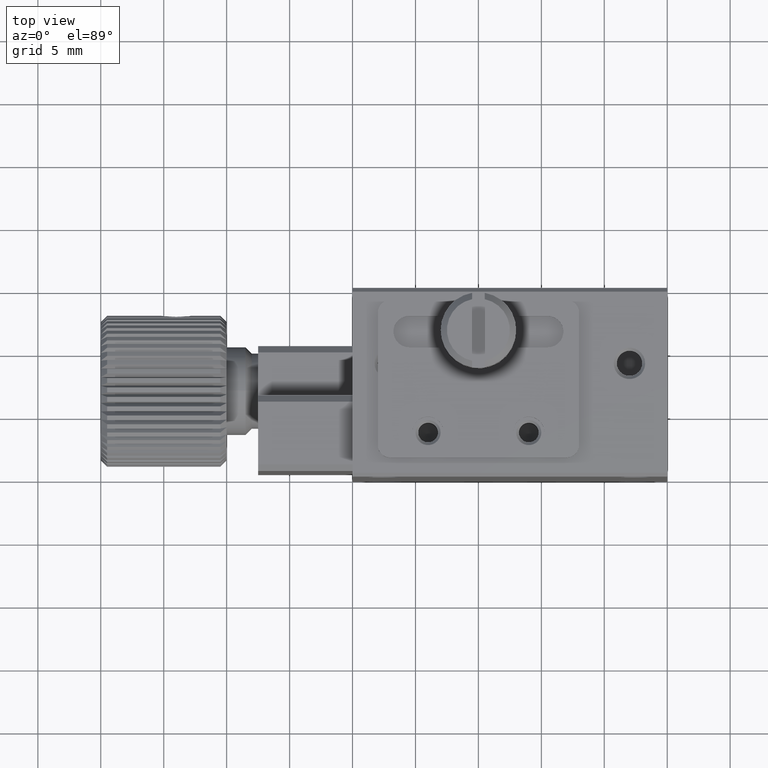
[diagram: clean part render]
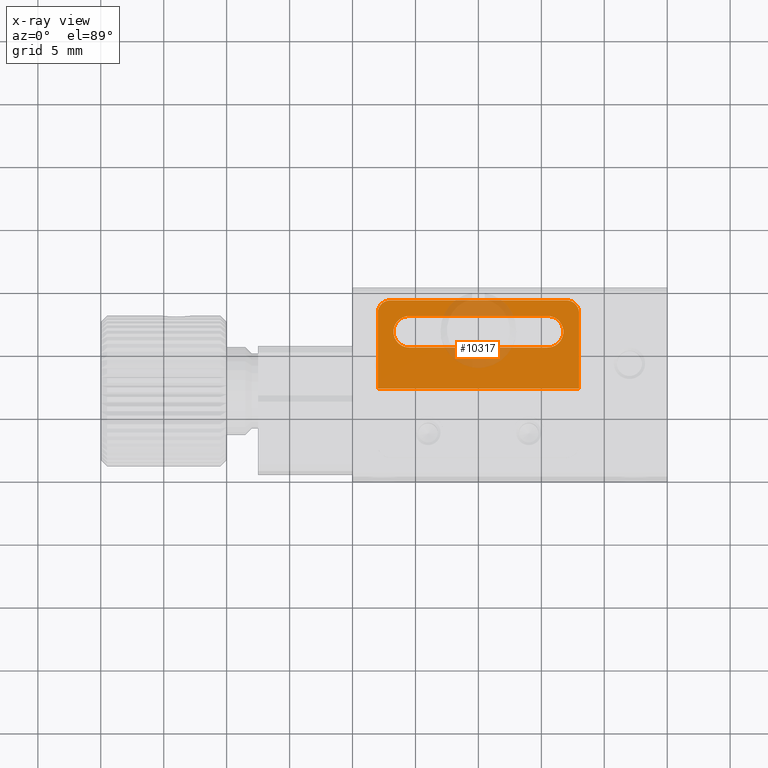
[diagram: x-ray — body ghosted, one internal face saturated and labeled with its STEP entity id]
A machine part, top view, then the same camera in x-ray: the body is ghosted and one INTERNAL B-rep face — a face not visible from any outside direction — is saturated and labeled: STEP entity #10317.
In plain terms, the highlighted planar face has unit normal (0, 0, 1).
Its self-contained STEP definition (entity closure, byte-faithful):
#67 = DIRECTION ( 'NONE',  ( -1.000000000000000000, 0.000000000000000000, 0.000000000000000000 ) ) ;
#416 = ORIENTED_EDGE ( 'NONE', *, *, #8452, .F. ) ;
#519 = EDGE_CURVE ( 'NONE', #2194, #7479, #8660, .T. ) ;
#656 = ORIENTED_EDGE ( 'NONE', *, *, #7029, .F. ) ;
#684 = VERTEX_POINT ( 'NONE', #5292 ) ;
#885 = ORIENTED_EDGE ( 'NONE', *, *, #4628, .F. ) ;
#922 = VERTEX_POINT ( 'NONE', #1804 ) ;
#955 = ORIENTED_EDGE ( 'NONE', *, *, #4452, .F. ) ;
#1006 = VERTEX_POINT ( 'NONE', #8874 ) ;
#1058 = EDGE_CURVE ( 'NONE', #922, #684, #8899, .T. ) ;
#1394 = FACE_OUTER_BOUND ( 'NONE', #8771, .T. ) ;
#1501 = DIRECTION ( 'NONE',  ( 0.000000000000000000, 0.000000000000000000, -1.000000000000000000 ) ) ;
#1804 = CARTESIAN_POINT ( 'NONE',  ( 3.000000000000000000, 14.00000000000000178, 0.000000000000000000 ) ) ;
#2009 = CARTESIAN_POINT ( 'NONE',  ( 18.00000000000001066, 13.00000000000000178, 0.000000000000000000 ) ) ;
#2071 = CARTESIAN_POINT ( 'NONE',  ( 3.000000000000000000, 13.00000000000000178, 0.000000000000000000 ) ) ;
#2194 = VERTEX_POINT ( 'NONE', #10934 ) ;
#2452 = ORIENTED_EDGE ( 'NONE', *, *, #12313, .T. ) ;
#2586 = CARTESIAN_POINT ( 'NONE',  ( 17.00000000000000000, 14.00000000000000000, 0.000000000000000000 ) ) ;
#2589 = DIRECTION ( 'NONE',  ( 0.000000000000000000, 0.000000000000000000, 1.000000000000000000 ) ) ;
#2713 = DIRECTION ( 'NONE',  ( -0.000000000000000000, 1.000000000000000000, 0.000000000000000000 ) ) ;
#3065 = EDGE_LOOP ( 'NONE', ( #11995, #7273, #416, #955 ) ) ;
#3267 = VECTOR ( 'NONE', #11010, 1000.000000000000000 ) ;
#3361 = CARTESIAN_POINT ( 'NONE',  ( 18.00000000000000355, 2.500000000000000000, 0.000000000000000000 ) ) ;
#3651 = CARTESIAN_POINT ( 'NONE',  ( 4.500000000000000888, 11.50000000000000000, 0.000000000000000000 ) ) ;
#3791 = ORIENTED_EDGE ( 'NONE', *, *, #12349, .T. ) ;
#3806 = CARTESIAN_POINT ( 'NONE',  ( 2.000000000000001332, 7.000000000000000000, 0.000000000000000000 ) ) ;
#3839 = DIRECTION ( 'NONE',  ( 0.000000000000000000, 0.000000000000000000, -1.000000000000000000 ) ) ;
#3979 = VECTOR ( 'NONE', #2713, 1000.000000000000000 ) ;
#4114 = VERTEX_POINT ( 'NONE', #2586 ) ;
#4411 = VECTOR ( 'NONE', #5550, 1000.000000000000000 ) ;
#4452 = EDGE_CURVE ( 'NONE', #7479, #7180, #6210, .T. ) ;
#4583 = CARTESIAN_POINT ( 'NONE',  ( 3.000000000000000000, 2.500000000000000000, 0.000000000000000000 ) ) ;
#4628 = EDGE_CURVE ( 'NONE', #4114, #922, #12941, .T. ) ;
#4651 = DIRECTION ( 'NONE',  ( 1.000000000000000000, 0.000000000000000000, -0.000000000000000000 ) ) ;
#5292 = CARTESIAN_POINT ( 'NONE',  ( 2.000000000000000000, 13.00000000000000178, 0.000000000000000000 ) ) ;
#5550 = DIRECTION ( 'NONE',  ( -1.000000000000000000, -0.000000000000000000, 0.000000000000000000 ) ) ;
#5566 = AXIS2_PLACEMENT_3D ( 'NONE', #2071, #9267, #9330 ) ;
#5628 = DIRECTION ( 'NONE',  ( -1.000000000000000000, 0.000000000000000000, 0.000000000000000000 ) ) ;
#5656 = FACE_BOUND ( 'NONE', #3065, .T. ) ;
#5690 = CIRCLE ( 'NONE', #13050, 1.249999999999999334 ) ;
#6210 = LINE ( 'NONE', #8119, #3267 ) ;
#6268 = AXIS2_PLACEMENT_3D ( 'NONE', #13024, #11101, #67 ) ;
#6275 = VERTEX_POINT ( 'NONE', #2009 ) ;
#6314 = CARTESIAN_POINT ( 'NONE',  ( 15.50000000000000000, 10.25000000000000000, 0.000000000000000000 ) ) ;
#6540 = LINE ( 'NONE', #12533, #4411 ) ;
#6588 = VERTEX_POINT ( 'NONE', #3806 ) ;
#6815 = CARTESIAN_POINT ( 'NONE',  ( 3.000000000000000000, 14.00000000000000000, 0.000000000000000000 ) ) ;
#6838 = VERTEX_POINT ( 'NONE', #6314 ) ;
#7029 = EDGE_CURVE ( 'NONE', #6275, #4114, #11953, .T. ) ;
#7180 = VERTEX_POINT ( 'NONE', #12958 ) ;
#7273 = ORIENTED_EDGE ( 'NONE', *, *, #10013, .F. ) ;
#7397 = DIRECTION ( 'NONE',  ( -0.000000000000000000, -1.000000000000000000, 0.000000000000000000 ) ) ;
#7479 = VERTEX_POINT ( 'NONE', #12906 ) ;
#7615 = ORIENTED_EDGE ( 'NONE', *, *, #1058, .F. ) ;
#7743 = LINE ( 'NONE', #11774, #3979 ) ;
#7870 = DIRECTION ( 'NONE',  ( -1.000000000000000000, 0.000000000000000000, 0.000000000000000000 ) ) ;
#7998 = EDGE_CURVE ( 'NONE', #6588, #684, #7743, .T. ) ;
#8119 = CARTESIAN_POINT ( 'NONE',  ( 3.000000000000000000, 12.75000000000000178, 0.000000000000000000 ) ) ;
#8384 = CARTESIAN_POINT ( 'NONE',  ( 15.50000000000000000, 11.50000000000000000, 0.000000000000000000 ) ) ;
#8452 = EDGE_CURVE ( 'NONE', #7180, #6838, #5690, .T. ) ;
#8506 = DIRECTION ( 'NONE',  ( -1.000000000000000000, -0.000000000000000000, -0.000000000000000000 ) ) ;
#8633 = LINE ( 'NONE', #12670, #9468 ) ;
#8660 = CIRCLE ( 'NONE', #11410, 1.250000000000000222 ) ;
#8771 = EDGE_LOOP ( 'NONE', ( #3791, #9734, #7615, #885, #656, #2452 ) ) ;
#8874 = CARTESIAN_POINT ( 'NONE',  ( 18.00000000000000355, 7.000000000000000000, 0.000000000000000000 ) ) ;
#8899 = CIRCLE ( 'NONE', #5566, 1.000000000000000000 ) ;
#9267 = DIRECTION ( 'NONE',  ( -0.000000000000000000, -0.000000000000000000, 1.000000000000000000 ) ) ;
#9330 = DIRECTION ( 'NONE',  ( -1.000000000000000000, 0.000000000000000000, 0.000000000000000000 ) ) ;
#9417 = LINE ( 'NONE', #3361, #9898 ) ;
#9468 = VECTOR ( 'NONE', #8506, 1000.000000000000000 ) ;
#9734 = ORIENTED_EDGE ( 'NONE', *, *, #7998, .T. ) ;
#9898 = VECTOR ( 'NONE', #7397, 1000.000000000000000 ) ;
#10013 = EDGE_CURVE ( 'NONE', #6838, #2194, #6540, .T. ) ;
#10317 = ADVANCED_FACE ( 'NONE', ( #1394, #5656 ), #12703, .F. ) ;
#10821 = DIRECTION ( 'NONE',  ( -1.000000000000000000, -0.000000000000000000, 0.000000000000000000 ) ) ;
#10934 = CARTESIAN_POINT ( 'NONE',  ( 4.500000000000000888, 10.25000000000000000, 0.000000000000000000 ) ) ;
#11010 = DIRECTION ( 'NONE',  ( 1.000000000000000000, 0.000000000000000000, -0.000000000000000000 ) ) ;
#11101 = DIRECTION ( 'NONE',  ( -0.000000000000000000, -0.000000000000000000, 1.000000000000000000 ) ) ;
#11410 = AXIS2_PLACEMENT_3D ( 'NONE', #3651, #3839, #7870 ) ;
#11774 = CARTESIAN_POINT ( 'NONE',  ( 2.000000000000000000, 13.00000000000000178, 0.000000000000000000 ) ) ;
#11953 = CIRCLE ( 'NONE', #6268, 1.000000000000011324 ) ;
#11995 = ORIENTED_EDGE ( 'NONE', *, *, #519, .F. ) ;
#11996 = AXIS2_PLACEMENT_3D ( 'NONE', #4583, #2589, #4651 ) ;
#12140 = VECTOR ( 'NONE', #10821, 1000.000000000000000 ) ;
#12313 = EDGE_CURVE ( 'NONE', #6275, #1006, #9417, .T. ) ;
#12349 = EDGE_CURVE ( 'NONE', #1006, #6588, #8633, .T. ) ;
#12533 = CARTESIAN_POINT ( 'NONE',  ( 3.000000000000000000, 10.25000000000000000, 0.000000000000000000 ) ) ;
#12670 = CARTESIAN_POINT ( 'NONE',  ( 25.00000000000000000, 7.000000000000000888, 0.000000000000000000 ) ) ;
#12703 = PLANE ( 'NONE',  #11996 ) ;
#12906 = CARTESIAN_POINT ( 'NONE',  ( 4.500000000000000888, 12.75000000000000178, 0.000000000000000000 ) ) ;
#12941 = LINE ( 'NONE', #6815, #12140 ) ;
#12958 = CARTESIAN_POINT ( 'NONE',  ( 15.50000000000000000, 12.75000000000000178, 0.000000000000000000 ) ) ;
#13024 = CARTESIAN_POINT ( 'NONE',  ( 17.00000000000000000, 13.00000000000000178, 0.000000000000000000 ) ) ;
#13050 = AXIS2_PLACEMENT_3D ( 'NONE', #8384, #1501, #5628 ) ;